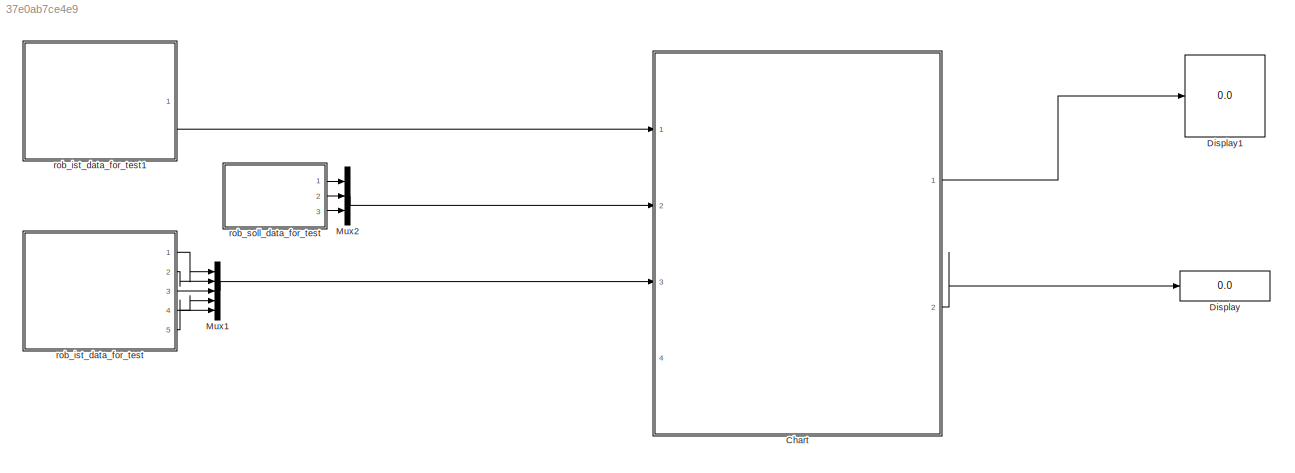
MODEL slx_37e0ab7ce4e9
KIND model
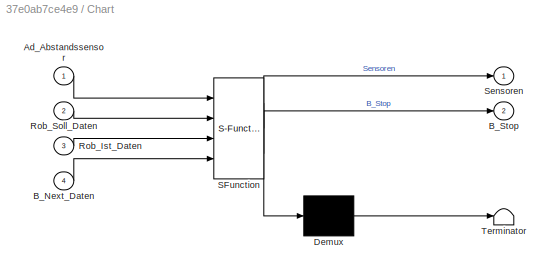
BLOCK [SubSystem] Chart
  ErrorFcn = Stateflow.Translate.translate
  PermitHierarchicalResolution = ExplicitOnly
  Ports = [4, 2]
  RequestExecContextInheritance = off
  SFBlockType = Chart
  TreatAsAtomicUnit = on
BLOCK [Demux] Chart/ Demux 
  Outputs = 1
  Ports = [1, 1]
BLOCK [S-Function] Chart/ SFunction 
  EnableBusSupport = on
  FunctionName = sf_sfun
  PortCounts = [4 3]
  Ports = [4, 3]
  Tag = Stateflow S-Function test_charti 15
BLOCK [Terminator] Chart/ Terminator 
BLOCK [Inport] Chart/Ad_Abstandssensor
  IconDisplay = Port number
BLOCK [Inport] Chart/B_Next_Daten
  IconDisplay = Port number
  Port = 4
BLOCK [Outport] Chart/B_Stop
  IconDisplay = Port number
  Port = 2
BLOCK [Inport] Chart/Rob_Ist_Daten
  IconDisplay = Port number
  Port = 3
BLOCK [Inport] Chart/Rob_Soll_Daten
  IconDisplay = Port number
  Port = 2
BLOCK [Outport] Chart/Sensoren
  IconDisplay = Port number
BLOCK [Display] Display
  Decimation = 1
  Ports = [1]
BLOCK [Display] Display1
  Decimation = 1
  Ports = [1]
BLOCK [Mux] Mux1
  DisplayOption = bar
  Inputs = 5
  Ports = [5, 1]
BLOCK [Mux] Mux2
  DisplayOption = bar
  Inputs = 3
  Ports = [3, 1]
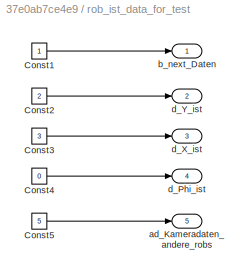
BLOCK [SubSystem] rob_ist_data_for_test
  Ports = [0, 5]
  RequestExecContextInheritance = off
BLOCK [Constant] rob_ist_data_for_test/Const1
  OutDataTypeStr = double
BLOCK [Constant] rob_ist_data_for_test/Const2
  OutDataTypeStr = double
  Value = 2
BLOCK [Constant] rob_ist_data_for_test/Const3
  OutDataTypeStr = double
  Value = 3
BLOCK [Constant] rob_ist_data_for_test/Const4
  OutDataTypeStr = double
  Value = 0
BLOCK [Constant] rob_ist_data_for_test/Const5
  OutDataTypeStr = double
  Value = 5
BLOCK [Outport] rob_ist_data_for_test/ad_Kameradaten_andere_robs
  IconDisplay = Port number
  Port = 5
BLOCK [Outport] rob_ist_data_for_test/b_next_Daten
  IconDisplay = Port number
BLOCK [Outport] rob_ist_data_for_test/d_Phi_ist
  IconDisplay = Port number
  Port = 4
BLOCK [Outport] rob_ist_data_for_test/d_X_ist
  IconDisplay = Port number
  Port = 3
BLOCK [Outport] rob_ist_data_for_test/d_Y_ist
  IconDisplay = Port number
  Port = 2
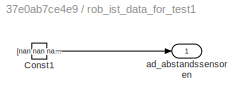
BLOCK [SubSystem] rob_ist_data_for_test1
  Ports = [0, 1]
  RequestExecContextInheritance = off
BLOCK [Constant] rob_ist_data_for_test1/Const1
  OutDataTypeStr = double
  Value = [nan nan nan nan 3 nan nan nan nan]
BLOCK [Outport] rob_ist_data_for_test1/ad_abstandssensoren
  IconDisplay = Port number
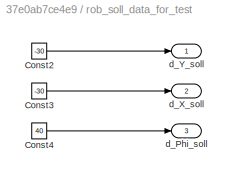
BLOCK [SubSystem] rob_soll_data_for_test
  Ports = [0, 3]
  RequestExecContextInheritance = off
BLOCK [Constant] rob_soll_data_for_test/Const2
  OutDataTypeStr = double
  Value = -30
BLOCK [Constant] rob_soll_data_for_test/Const3
  OutDataTypeStr = double
  Value = -30
BLOCK [Constant] rob_soll_data_for_test/Const4
  OutDataTypeStr = double
  Value = 40
BLOCK [Outport] rob_soll_data_for_test/d_Phi_soll
  IconDisplay = Port number
  Port = 3
BLOCK [Outport] rob_soll_data_for_test/d_X_soll
  IconDisplay = Port number
  Port = 2
BLOCK [Outport] rob_soll_data_for_test/d_Y_soll
  IconDisplay = Port number
LINE Chart:1 -> Display1:1
LINE Chart:2 -> Display:1
LINE Mux1:1 -> Chart:3
LINE Mux2:1 -> Chart:2
LINE rob_ist_data_for_test/Const1:1 -> rob_ist_data_for_test/b_next_Daten:1
LINE rob_ist_data_for_test/Const2:1 -> rob_ist_data_for_test/d_Y_ist:1
LINE rob_ist_data_for_test/Const3:1 -> rob_ist_data_for_test/d_X_ist:1
LINE rob_ist_data_for_test/Const4:1 -> rob_ist_data_for_test/d_Phi_ist:1
LINE rob_ist_data_for_test/Const5:1 -> rob_ist_data_for_test/ad_Kameradaten_andere_robs:1
LINE rob_ist_data_for_test1/Const1:1 -> rob_ist_data_for_test1/ad_abstandssensoren:1
LINE rob_ist_data_for_test1:1 -> Chart:1
LINE rob_ist_data_for_test:1 -> Mux1:1
LINE rob_ist_data_for_test:2 -> Mux1:2
LINE rob_ist_data_for_test:3 -> Mux1:3
LINE rob_ist_data_for_test:4 -> Mux1:4
LINE rob_ist_data_for_test:5 -> Mux1:5
LINE rob_soll_data_for_test/Const2:1 -> rob_soll_data_for_test/d_Y_soll:1
LINE rob_soll_data_for_test/Const3:1 -> rob_soll_data_for_test/d_X_soll:1
LINE rob_soll_data_for_test/Const4:1 -> rob_soll_data_for_test/d_Phi_soll:1
LINE rob_soll_data_for_test:1 -> Mux2:1
LINE rob_soll_data_for_test:2 -> Mux2:2
LINE rob_soll_data_for_test:3 -> Mux2:3
